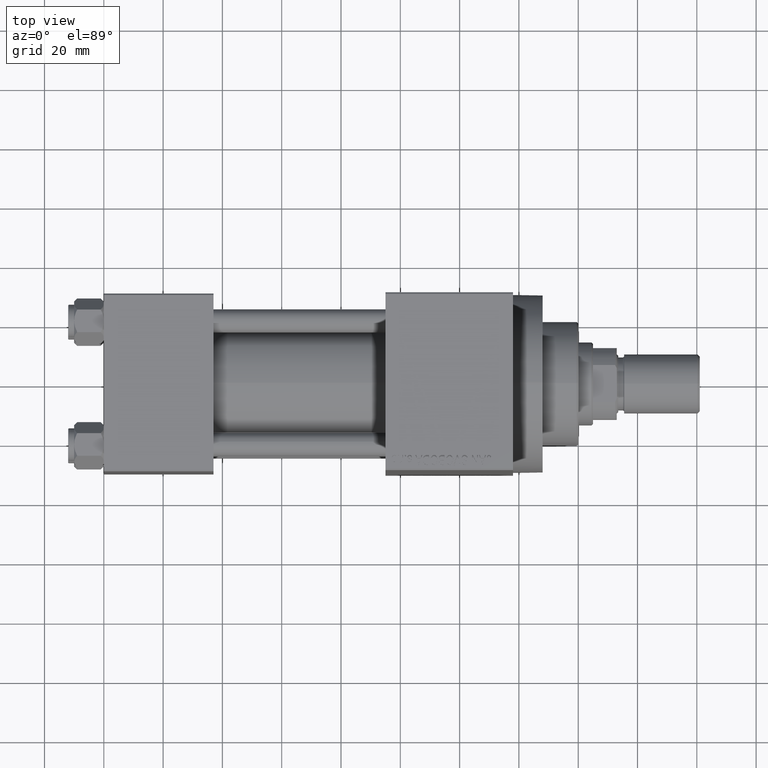
[diagram: clean part render]
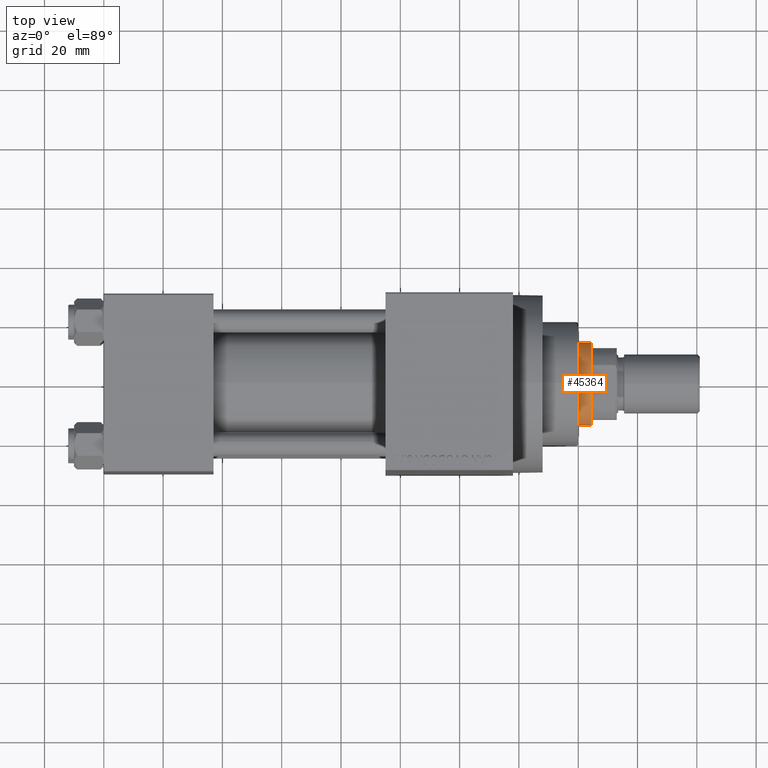
[diagram: same view with one face highlighted and labeled with its STEP entity id]
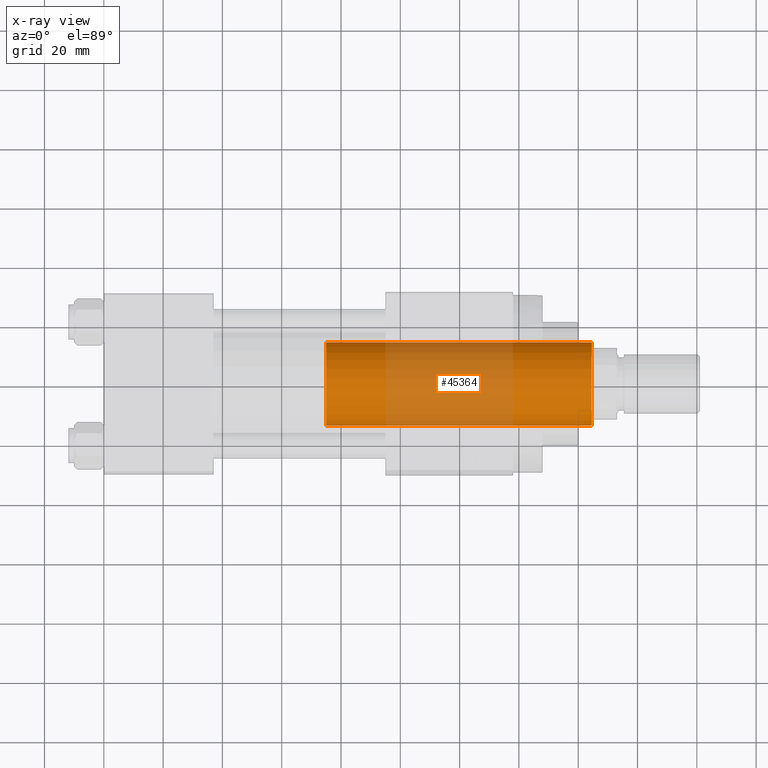
[diagram: x-ray of the same camera — body ghosted, the highlighted face saturated]
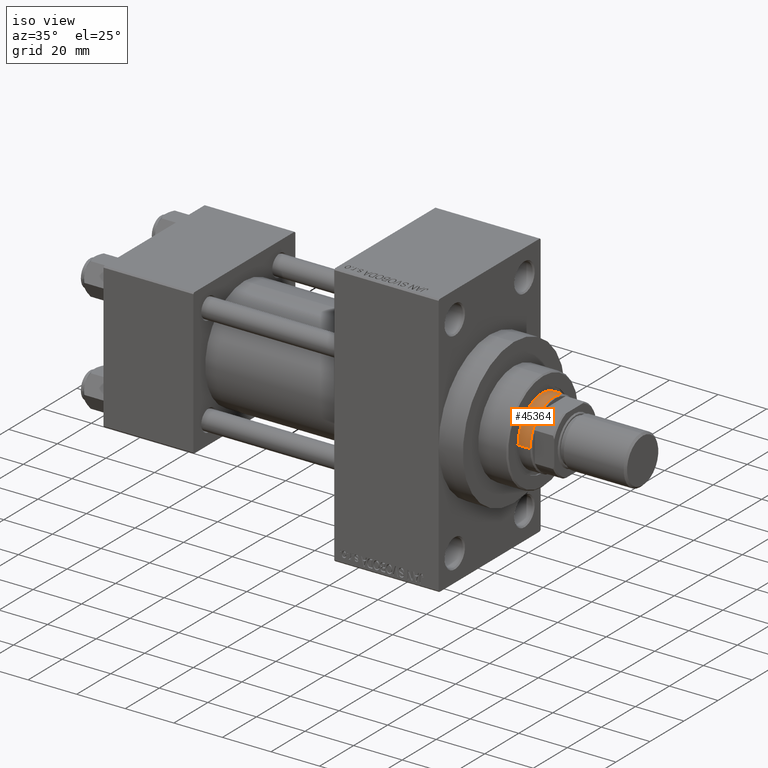
[diagram: same view with one face highlighted and labeled with its STEP entity id]
A machine part, top view. The second image highlights one B-rep face of the part: STEP entity #45364.
The next image is the same camera in x-ray: the body ghosted, the highlighted face saturated — about 48% of this face is hidden behind the body in this view.
A second angle (iso view) of the same face is appended — the face is thin or edge-on in the first view.
In plain terms, the highlighted cylindrical surface (partial cylindrical patch) has radius 14 mm, axis along (-1, 0, 0).
Its self-contained STEP definition (entity closure, byte-faithful):
#430 = ORIENTED_EDGE ( 'NONE', *, *, #43767, .F. ) ;
#2171 = FACE_OUTER_BOUND ( 'NONE', #26421, .T. ) ;
#2650 = DIRECTION ( 'NONE',  ( -1.000000000000000000, 0.000000000000000000, 0.000000000000000000 ) ) ;
#4443 = DIRECTION ( 'NONE',  ( -0.000000000000000000, -0.000000000000000000, -1.000000000000000000 ) ) ;
#4743 = DIRECTION ( 'NONE',  ( 1.000000000000000000, 0.000000000000000000, 0.000000000000000000 ) ) ;
#5320 = CARTESIAN_POINT ( 'NONE',  ( -14.00000000000000178, 0.000000000000000000, 127.5000000000000853 ) ) ;
#7507 = CIRCLE ( 'NONE', #32930, 14.00000000000000178 ) ;
#8337 = DIRECTION ( 'NONE',  ( -0.000000000000000000, -0.000000000000000000, -1.000000000000000000 ) ) ;
#9831 = CARTESIAN_POINT ( 'NONE',  ( 14.00000000000000178, 1.714505518806294441E-15, 38.00000000000000000 ) ) ;
#12893 = LINE ( 'NONE', #42329, #22462 ) ;
#13504 = CYLINDRICAL_SURFACE ( 'NONE', #27241, 14.00000000000000178 ) ;
#14242 = EDGE_CURVE ( 'NONE', #15538, #34704, #37263, .T. ) ;
#14534 = DIRECTION ( 'NONE',  ( 1.000000000000000000, 0.000000000000000000, 0.000000000000000000 ) ) ;
#14992 = VECTOR ( 'NONE', #4443, 1000.000000000000000 ) ;
#15049 = CIRCLE ( 'NONE', #16590, 14.00000000000000178 ) ;
#15538 = VERTEX_POINT ( 'NONE', #5320 ) ;
#16590 = AXIS2_PLACEMENT_3D ( 'NONE', #30791, #38036, #4743 ) ;
#18157 = CARTESIAN_POINT ( 'NONE',  ( 0.000000000000000000, 0.000000000000000000, 127.5000000000000853 ) ) ;
#18666 = VERTEX_POINT ( 'NONE', #41151 ) ;
#22462 = VECTOR ( 'NONE', #8337, 1000.000000000000000 ) ;
#26056 = EDGE_CURVE ( 'NONE', #34704, #45454, #15049, .T. ) ;
#26421 = EDGE_LOOP ( 'NONE', ( #430, #46240, #27723, #31279 ) ) ;
#27241 = AXIS2_PLACEMENT_3D ( 'NONE', #42944, #35691, #2650 ) ;
#27723 = ORIENTED_EDGE ( 'NONE', *, *, #14242, .T. ) ;
#29655 = EDGE_CURVE ( 'NONE', #18666, #15538, #7507, .T. ) ;
#30791 = CARTESIAN_POINT ( 'NONE',  ( 0.000000000000000000, 0.000000000000000000, 38.00000000000000000 ) ) ;
#31279 = ORIENTED_EDGE ( 'NONE', *, *, #26056, .T. ) ;
#32886 = DIRECTION ( 'NONE',  ( 0.000000000000000000, 0.000000000000000000, -1.000000000000000000 ) ) ;
#32930 = AXIS2_PLACEMENT_3D ( 'NONE', #18157, #32886, #14534 ) ;
#34704 = VERTEX_POINT ( 'NONE', #42265 ) ;
#35691 = DIRECTION ( 'NONE',  ( -0.000000000000000000, -0.000000000000000000, -1.000000000000000000 ) ) ;
#37263 = LINE ( 'NONE', #45200, #14992 ) ;
#38036 = DIRECTION ( 'NONE',  ( 0.000000000000000000, 0.000000000000000000, 1.000000000000000000 ) ) ;
#41151 = CARTESIAN_POINT ( 'NONE',  ( 14.00000000000000178, 1.714505518806294441E-15, 127.5000000000000853 ) ) ;
#42265 = CARTESIAN_POINT ( 'NONE',  ( -14.00000000000000178, 0.000000000000000000, 38.00000000000000000 ) ) ;
#42329 = CARTESIAN_POINT ( 'NONE',  ( 14.00000000000000178, 1.714505518806294441E-15, 128.0000000000000000 ) ) ;
#42944 = CARTESIAN_POINT ( 'NONE',  ( 0.000000000000000000, 0.000000000000000000, 128.0000000000000000 ) ) ;
#43767 = EDGE_CURVE ( 'NONE', #18666, #45454, #12893, .T. ) ;
#45200 = CARTESIAN_POINT ( 'NONE',  ( -14.00000000000000178, 0.000000000000000000, 128.0000000000000000 ) ) ;
#45364 = ADVANCED_FACE ( 'NONE', ( #2171 ), #13504, .T. ) ;
#45454 = VERTEX_POINT ( 'NONE', #9831 ) ;
#46240 = ORIENTED_EDGE ( 'NONE', *, *, #29655, .T. ) ;